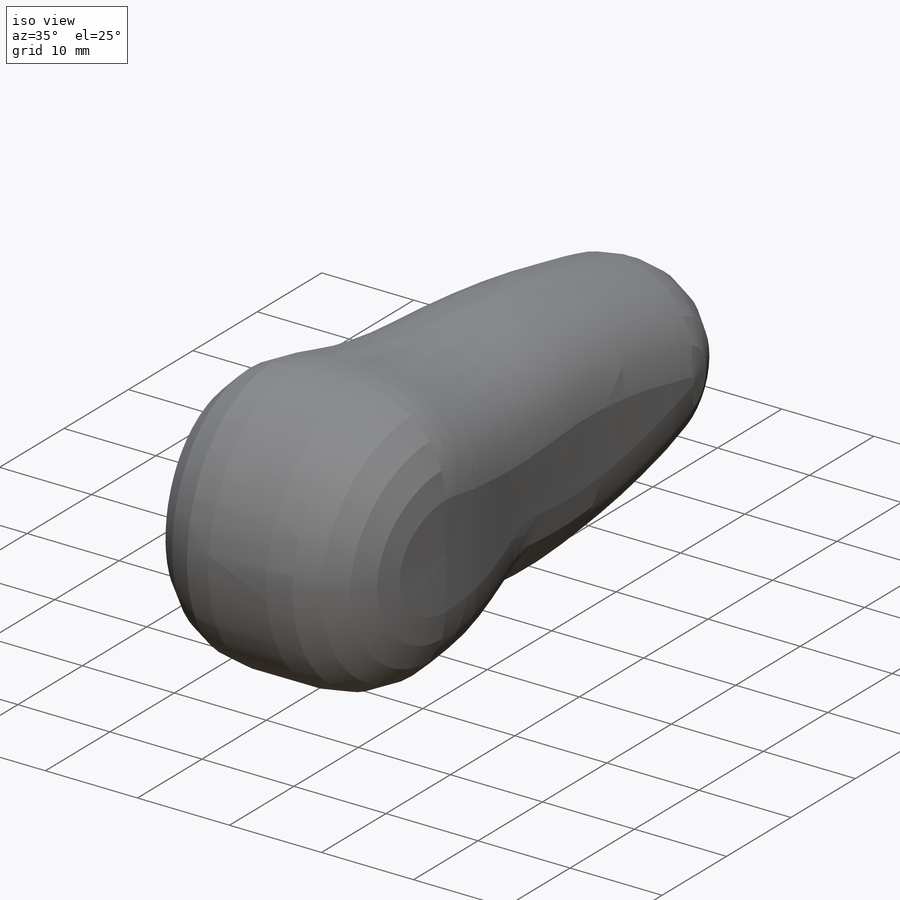
[diagram: iso view]
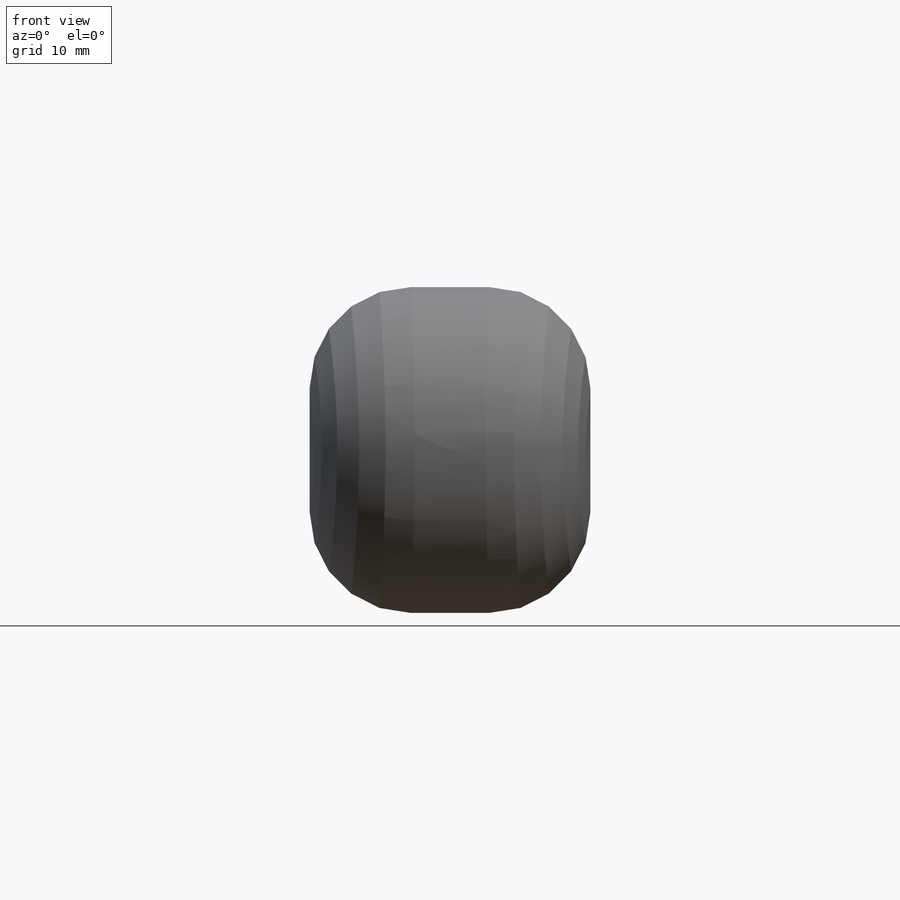
[diagram: front view]
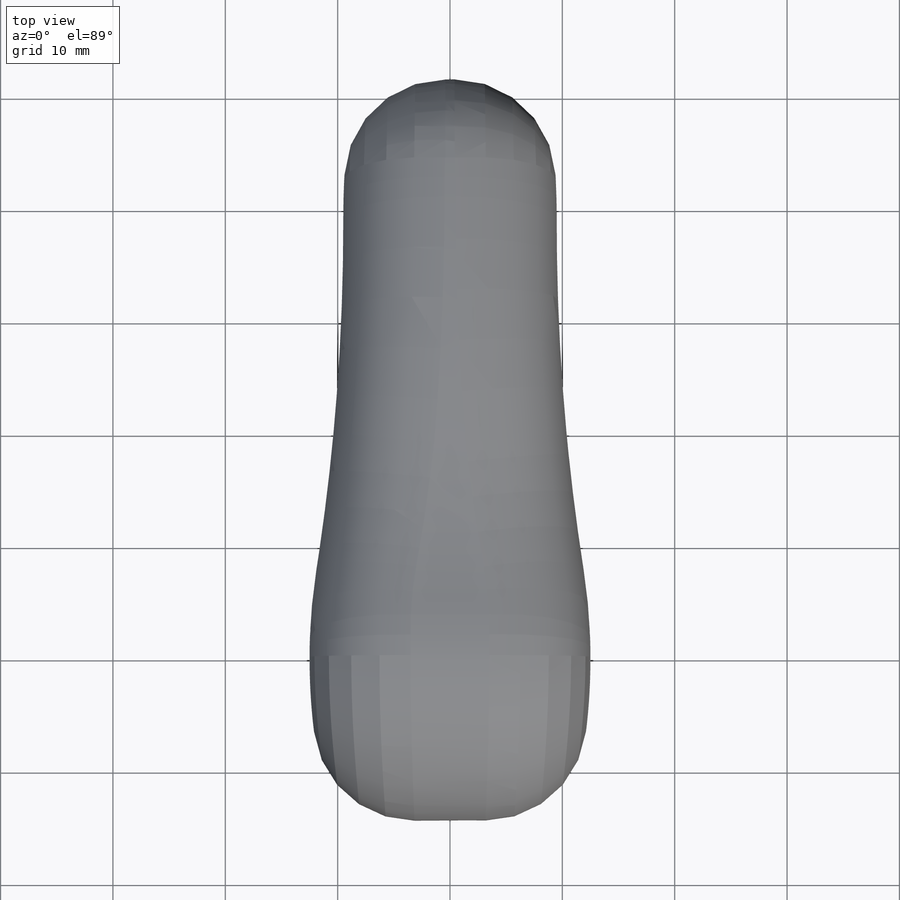
[diagram: top view]
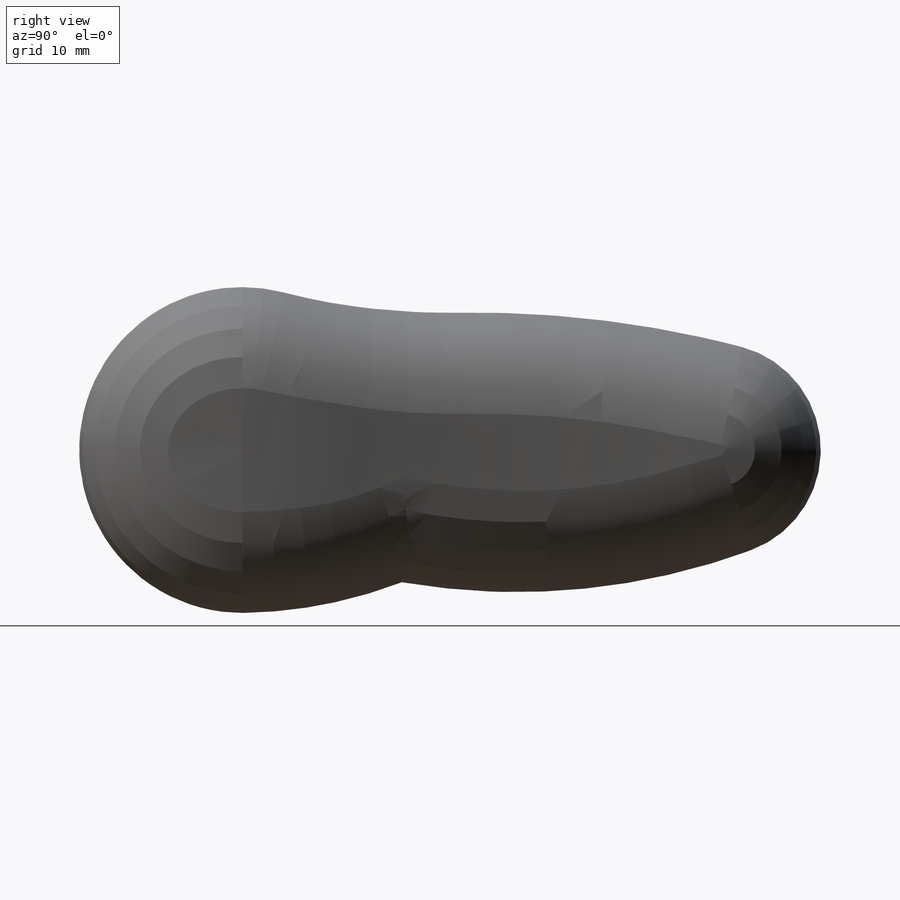
[diagram: right view]
SOLIDWORKS PART (.sldprt)
format: sldprt  version: not decoded by parser v0  size: 266,752 bytes
history: native  units: mm
features: sketch x4, plane x3, cut_extrude x3, material x1, extrude x1, fillet x1 (+11 scaffold rows collapsed)
feature tree (24):
  scaffold x11  (default folders/planes/origin — collapsed)
  material  "Material <nicht festgelegt>"
  plane  "Vorne"
  plane  "Oben"
  plane  "Rechts"
  sketch  "Skizze2"  dims[c1.D1=22.0mm c1.D2=19.0mm c1.D3=15.0mm c1.D4=65.0mm c1.D5=85.0mm c1.D6=19.0mm c1.D7=29.0mm c2.D1=80.0mm c2.D2=19.0mm c3.D1=94.0mm c3.D3=57.0mm c3.D5=60.0mm c3.D8=41.0mm c4.D3=54.0mm c4.D2=66.0mm c4.D4=~37.272414mm]
  extrude  "Basis-Gundkörper"  Depth=25mm
  sketch  "Skizze3"  dims[c1.D6=~49.915618mm c1.D7=200.0mm c1.D8=71.0mm c1.D9=71.5mm c1.D1=23.0mm c1.D2=~21.050143mm c1.D3=~71.348373mm c1.D4=2.0mm c1.D5=~7.483658mm c2.D1=~2.556497mm c2.D9=19.0mm]
  cut_extrude  "Seitlische Verjüngung rechts"  [1 undecoded]
  sketch  "Skizze5"  dims[c1.D1=3.0mm c1.D2=3.0mm c1.D3=7.5mm c1.D4=9.5mm c1.D5=9.5mm c1.D6=7.5mm c2.D3=9.5mm c2.D6=9.5mm c2.D4=11.0mm c2.D5=11.0mm c2.D2=5.0mm c3.D4=1.0mm c3.D3=5.5mm c4.D4=6.5mm c4.D5=6.5mm c4.D6=5.5mm c4.D3=7.0mm c5.D6=7.0mm c5.D4=14.0mm c5.D5=14.0mm]
  cut_extrude  "Kipp-Gelenk"  Depth=10mm
  sketch  "Skizze6"  dims[c1.D1=3.0mm c1.D2=14.5mm c1.D3=14.5mm c2.D1=3.0mm c2.D6=5.0mm c2.D7=1.0mm c2.D2=13.0mm c2.D3=13.0mm c2.D4=~15.868911mm c3.D4=20.0deg c3.D5=~17.004696mm c4.D5=20.0deg]
  fillet  "Verrundung1"  Radius=9mm
  cut_extrude  "Schnitt-Linear austragen1"  Depth=10mm
decode coverage: 8 of 9 modeling features carry decoded parameters
note: ~ marks probable driven/reference dimensions
note: 1 parameter value undecoded
note: suppression state not decoded; provenance and decode notes live in map.json
